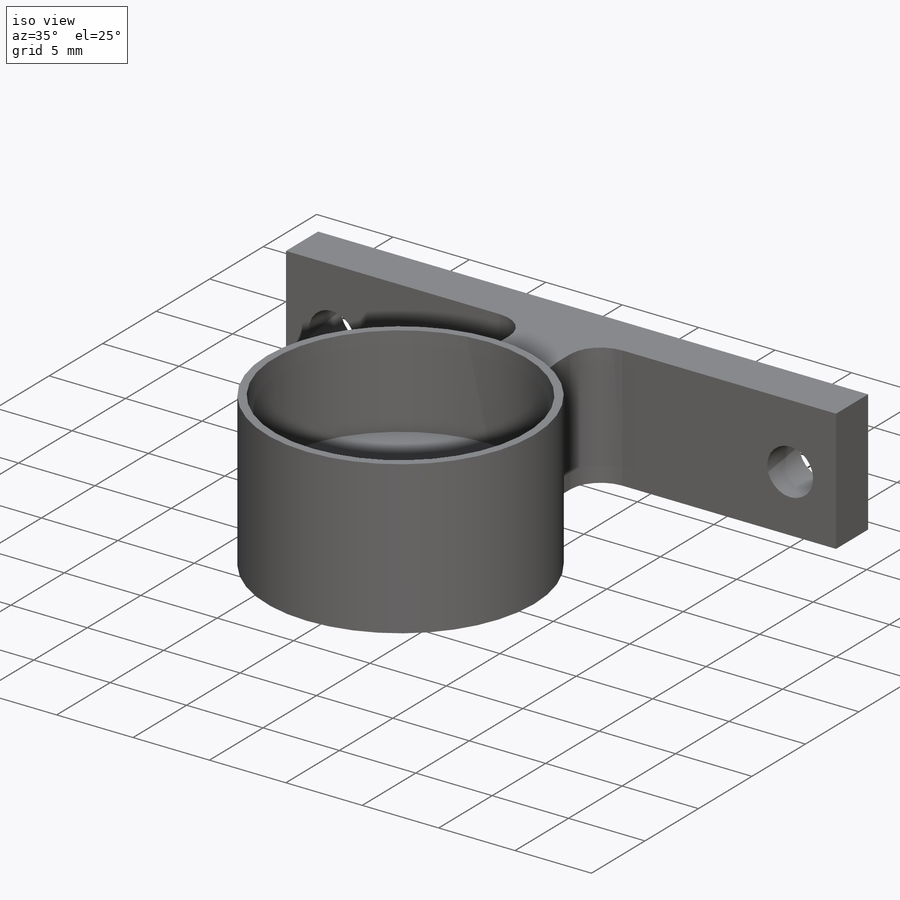
[diagram: iso view]
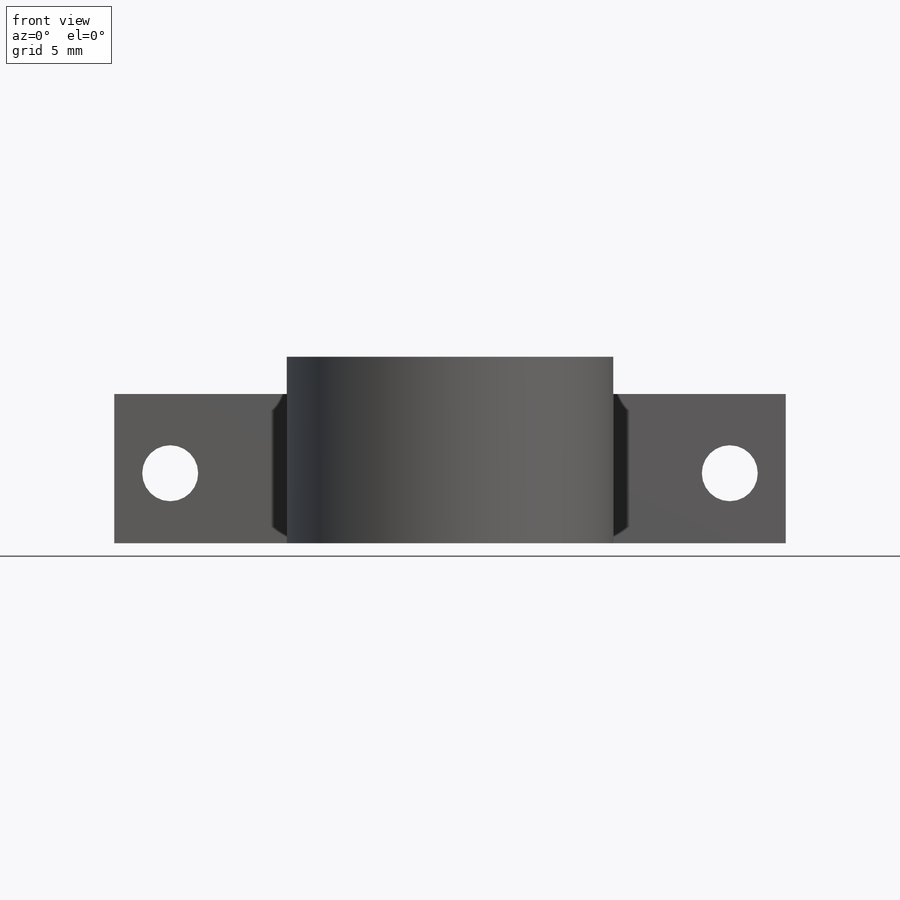
[diagram: front view]
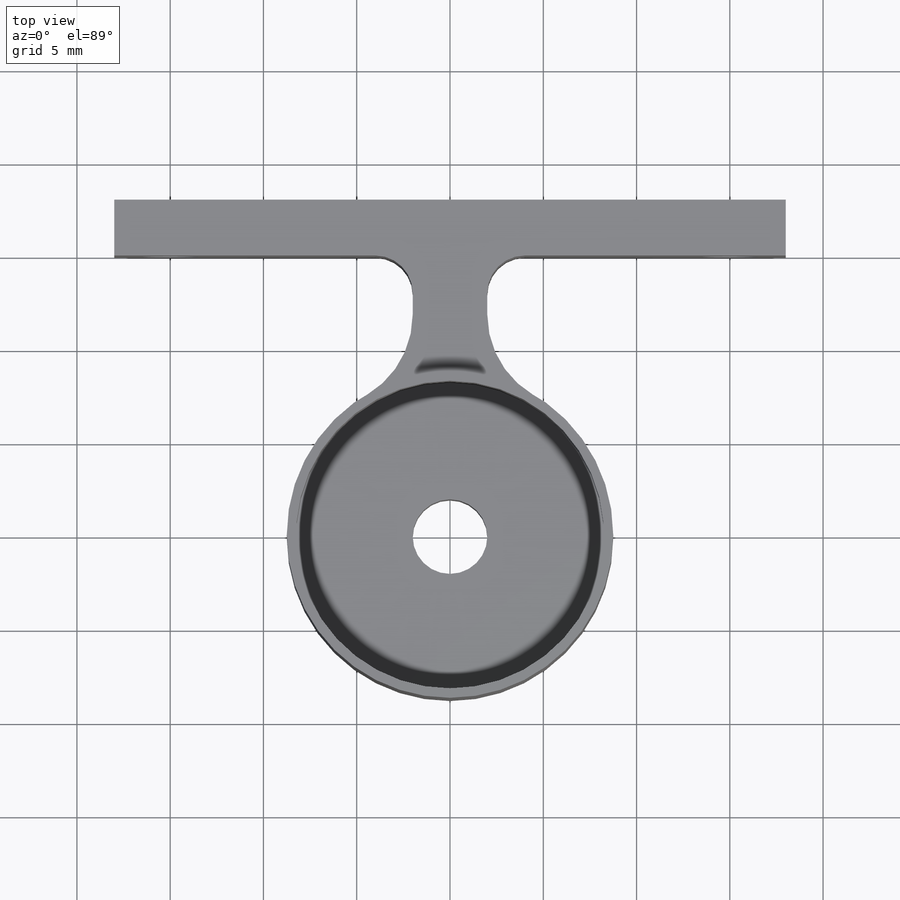
[diagram: top view]
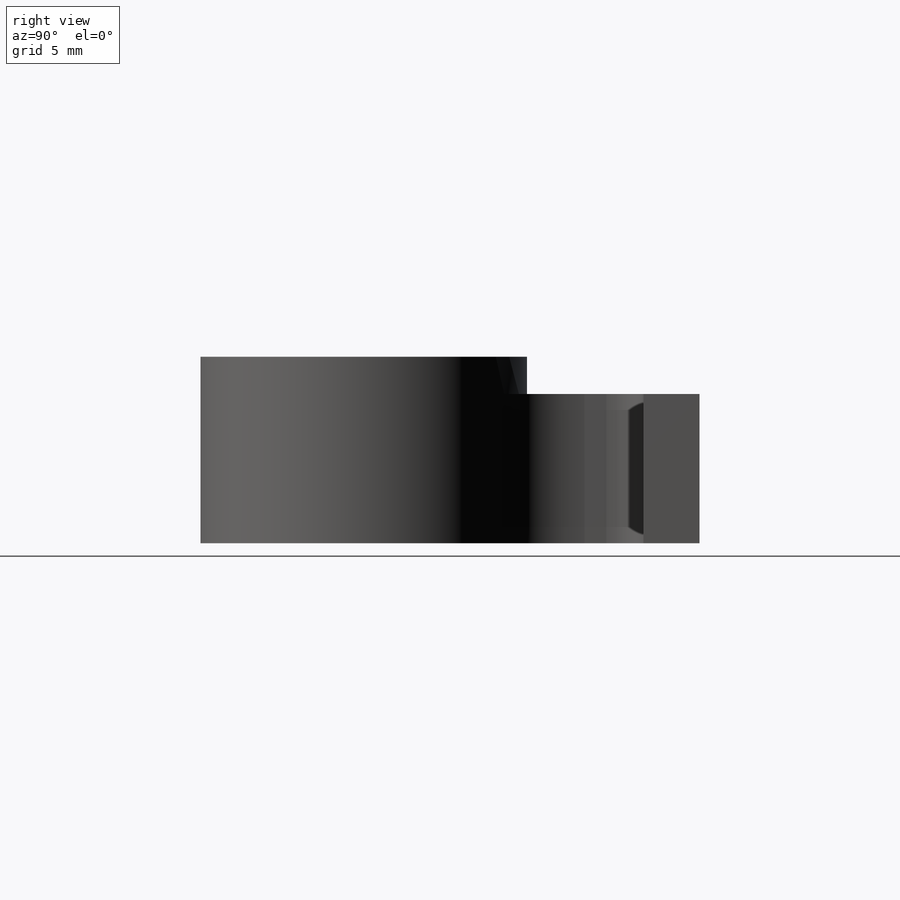
[diagram: right view]
SOLIDWORKS PART (.sldprt)
format: sldprt  version: not decoded by parser v0  size: 368,128 bytes
history: native  units: mm
features: sketch x16, extrude x10, cut_extrude x6, plane x4, fillet x2, material x1, mirror x1 (+9 scaffold rows collapsed)
feature tree (49):
  scaffold x9  (default folders/planes/origin — collapsed)
  material  "材质 <未指定>"
  plane  "前视基准面"
  plane  "上视基准面"
  plane  "右视基准面"
  sketch  "草图1"  dims[D1=16.5mm D2=17.5mm]
  extrude  "凸台-拉伸2"  Depth=10mm
  sketch  "草图2"  dims[D1=4.0mm]
  extrude  "凸台-拉伸3"  Depth=4mm
  sketch  "草图3"  dims[D1=13.0mm D2=13.0mm D3=3.0mm D4=3.0mm]
  extrude  "凸台-拉伸4"  Depth=8mm
  sketch  "草图5"  dims[D1=8.0mm]
  extrude  "凸台-拉伸5"  Depth=3mm
  sketch  "草图6"  dims[D1=8.0mm]
  extrude  "凸台-拉伸6"  Depth=3mm
  sketch  "草图7"  dims[c1.D2=3.0mm c1.D1=15.0mm c1.D3=15.0mm c2.D1=8.0mm]
  cut_extrude  "切除-拉伸1"  Depth=3mm
  mirror  "镜向1"
  fillet  "圆角1"  Radius=5mm
  fillet  "圆角3"  Radius=2mm
  plane  "基准面1"  Offset=10mm
  sketch  "草图8"  dims[D1=17.5mm D2=16.5mm]
  extrude  "凸台-拉伸7"  Depth=8mm
  sketch  "草图9"  dims[D1=12.0mm]
  extrude  "凸台-拉伸8"  Depth=2mm
  sketch  "草图10"  dims[D1=18.0mm D2=18.0mm D3=18.0mm D4=16.0mm D5=16.0mm]
  extrude  "凸台-拉伸9"  Depth=8mm
  sketch  "草图11"  dims[c1.D3=3.0mm c1.D4=3.0mm c1.D1=15.0mm c1.D2=30.0mm c1.D5=15.0mm c2.D1=30.0mm]
  cut_extrude  "切除-拉伸2"  Depth=8mm
  sketch  "草图12"  dims[D1=1.0mm D2=1.0mm D3=1.0mm D4=1.0mm]
  cut_extrude  "切除-拉伸3"  Depth=8mm
  sketch  "草图13"  dims[D1=1.0mm D2=1.0mm D3=1.0mm D4=1.0mm]
  cut_extrude  "切除-拉伸4"  Depth=8mm
  sketch  "草图14"  dims[D1=17.5mm D2=16.5mm]
  extrude  "凸台-拉伸10"  Depth=8mm
  sketch  "草图15"  dims[D1=18.0mm D2=18.0mm D3=18.0mm D4=3.0mm D5=16.0mm D6=16.0mm D7=18.0mm]
  extrude  "凸台-拉伸11"  Depth=8mm
  sketch  "草图16"  dims[D3=3.0mm D4=3.0mm D1=15.0mm D2=15.0mm]
  cut_extrude  "切除-拉伸5"  Depth=8mm
  sketch  "草图17"
  cut_extrude  "切除-拉伸6"  Depth=10mm
decode coverage: 33 of 35 modeling features carry decoded parameters
note: suppression state not decoded; provenance and decode notes live in map.json
